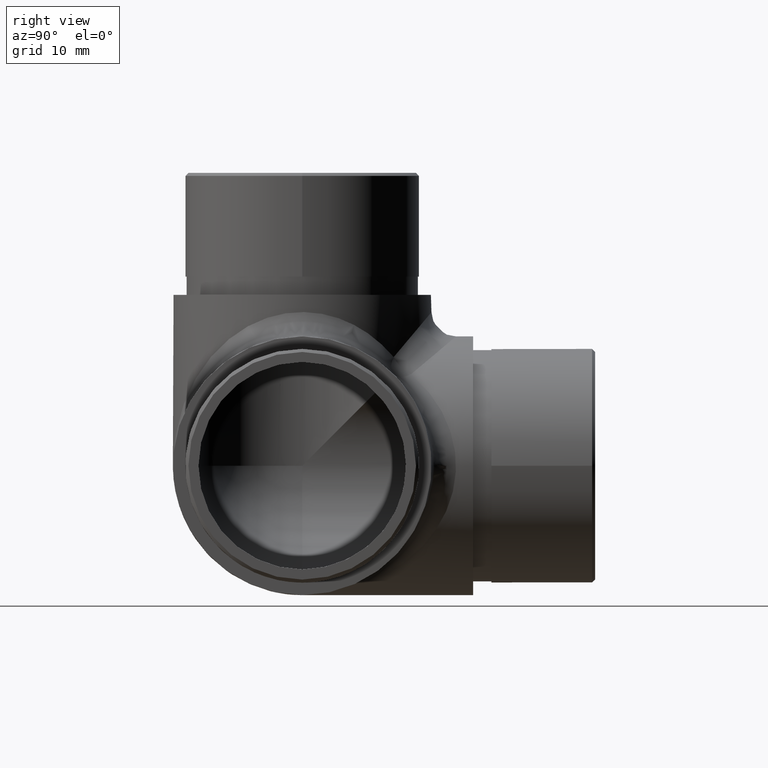
[diagram: clean part render]
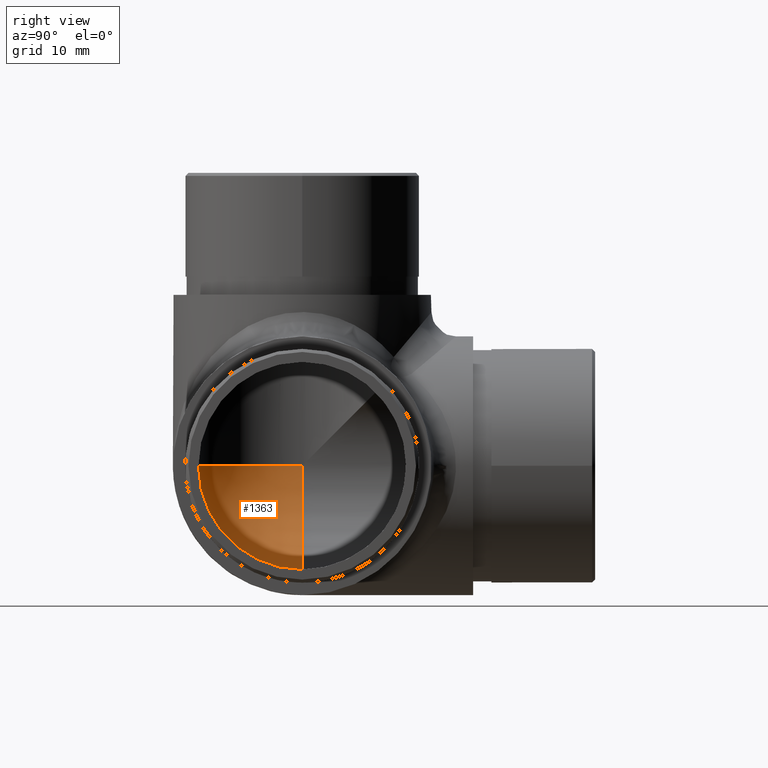
[diagram: same view with one face highlighted and labeled with its STEP entity id]
A machine part, right view. The second image highlights one B-rep face of the part: STEP entity #1363.
In plain terms, the highlighted spherical surface has radius 17 mm.
Its self-contained STEP definition (entity closure, byte-faithful):
#381 = CARTESIAN_POINT ( 'NONE',  ( 2.124423552260768200E-031, 4.199999999999999300, 21.19999999999999200 ) ) ;
#417 = DIRECTION ( 'NONE',  ( 0.0000000000000000000, 0.0000000000000000000, 1.000000000000000000 ) ) ;
#1222 = AXIS2_PLACEMENT_3D ( 'NONE', #7353, #1357, #417 ) ;
#1357 = DIRECTION ( 'NONE',  ( 0.0000000000000000000, 1.000000000000000000, 0.0000000000000000000 ) ) ;
#1363 = ADVANCED_FACE ( 'NONE', ( #5371 ), #2994, .F. ) ;
#2587 = DIRECTION ( 'NONE',  ( 1.000000000000000000, 0.0000000000000000000, 0.0000000000000000000 ) ) ;
#2994 = SPHERICAL_SURFACE ( 'NONE', #7524, 16.99999999999999600 ) ;
#3922 = VERTEX_POINT ( 'NONE', #4163 ) ;
#3979 = CARTESIAN_POINT ( 'NONE',  ( 0.0000000000000000000, 21.19999999999999600, 4.200000000000009100 ) ) ;
#4163 = CARTESIAN_POINT ( 'NONE',  ( -16.99999999999999600, 21.19999999999999600, 21.19999999999999200 ) ) ;
#4643 = AXIS2_PLACEMENT_3D ( 'NONE', #7255, #8224, #10156 ) ;
#4649 = DIRECTION ( 'NONE',  ( -0.0000000000000000000, 1.000000000000000000, 0.0000000000000000000 ) ) ;
#5088 = DIRECTION ( 'NONE',  ( 1.000000000000000000, 0.0000000000000000000, 0.0000000000000000000 ) ) ;
#5336 = CIRCLE ( 'NONE', #9252, 17.00000000000000000 ) ;
#5371 = FACE_OUTER_BOUND ( 'NONE', #12659, .T. ) ;
#5662 = CARTESIAN_POINT ( 'NONE',  ( 0.0000000000000000000, 21.19999999999999600, 21.20000000000000300 ) ) ;
#5702 = CIRCLE ( 'NONE', #1222, 17.00000000000000000 ) ;
#5796 = ORIENTED_EDGE ( 'NONE', *, *, #6729, .T. ) ;
#6729 = EDGE_CURVE ( 'NONE', #3922, #8595, #11562, .T. ) ;
#7255 = CARTESIAN_POINT ( 'NONE',  ( 0.0000000000000000000, 21.19999999999999900, 21.19999999999999600 ) ) ;
#7353 = CARTESIAN_POINT ( 'NONE',  ( 0.0000000000000000000, 21.19999999999999600, 21.20000000000000300 ) ) ;
#7524 = AXIS2_PLACEMENT_3D ( 'NONE', #5662, #4649, #2587 ) ;
#8132 = EDGE_CURVE ( 'NONE', #8595, #8644, #5336, .T. ) ;
#8224 = DIRECTION ( 'NONE',  ( 0.0000000000000000000, 0.0000000000000000000, 1.000000000000000000 ) ) ;
#8595 = VERTEX_POINT ( 'NONE', #381 ) ;
#8644 = VERTEX_POINT ( 'NONE', #3979 ) ;
#8656 = ORIENTED_EDGE ( 'NONE', *, *, #8132, .T. ) ;
#9252 = AXIS2_PLACEMENT_3D ( 'NONE', #10927, #5088, #11052 ) ;
#10156 = DIRECTION ( 'NONE',  ( 1.000000000000000000, 0.0000000000000000000, 0.0000000000000000000 ) ) ;
#10641 = EDGE_CURVE ( 'NONE', #8644, #3922, #5702, .T. ) ;
#10922 = ORIENTED_EDGE ( 'NONE', *, *, #10641, .T. ) ;
#10927 = CARTESIAN_POINT ( 'NONE',  ( 0.0000000000000000000, 21.19999999999999600, 21.19999999999999900 ) ) ;
#11052 = DIRECTION ( 'NONE',  ( 0.0000000000000000000, 0.0000000000000000000, -1.000000000000000000 ) ) ;
#11562 = CIRCLE ( 'NONE', #4643, 17.00000000000000000 ) ;
#12659 = EDGE_LOOP ( 'NONE', ( #10922, #5796, #8656 ) ) ;